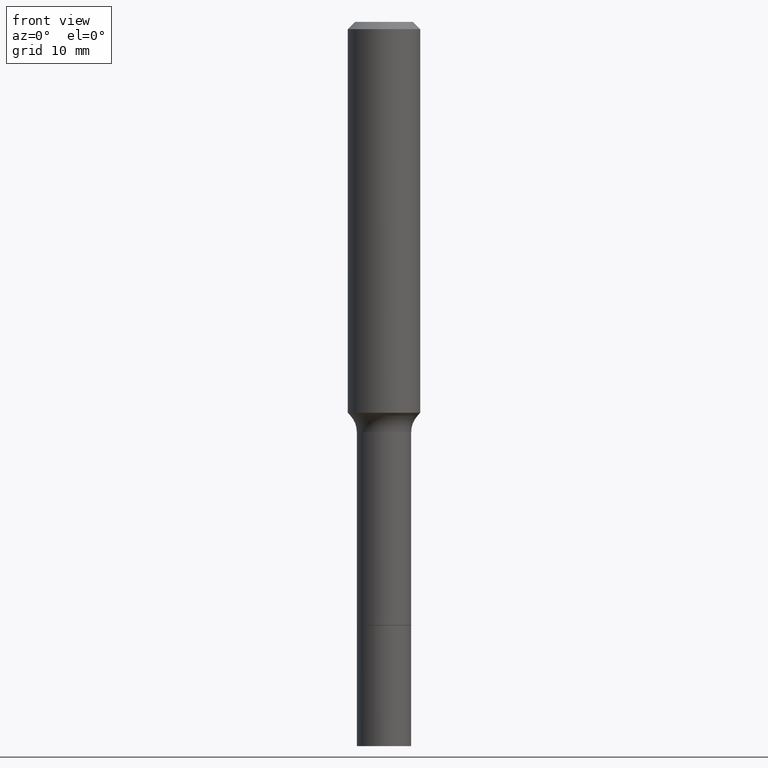
[diagram: clean part render]
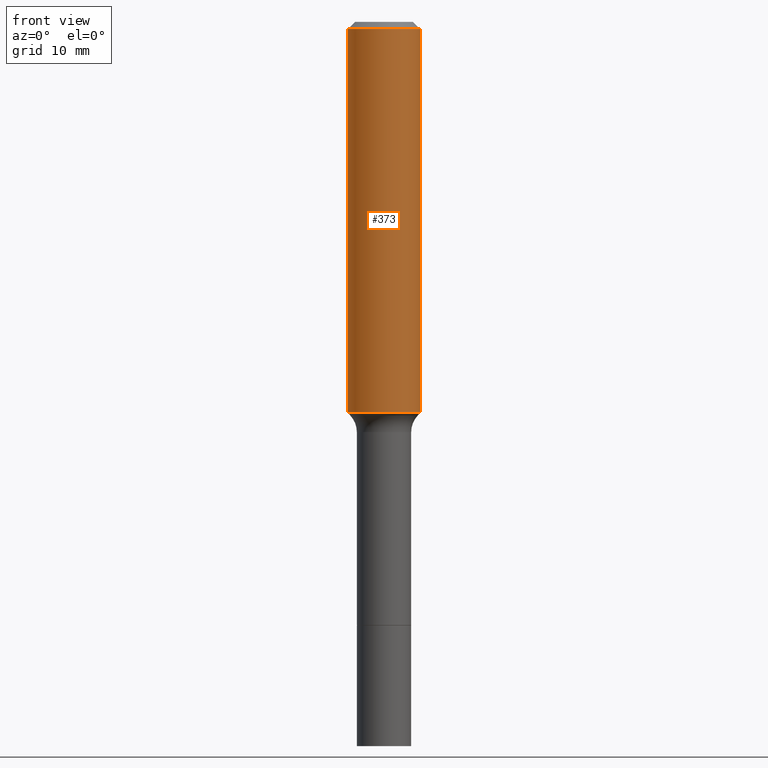
[diagram: same view with one face highlighted and labeled with its STEP entity id]
A machine part, front view. The second image highlights one B-rep face of the part: STEP entity #373.
In plain terms, the highlighted cylindrical surface (edge-blend (fillet) strip) has radius 2.9997 mm, axis along (-0, 0, 1).
Its self-contained STEP definition (entity closure, byte-faithful):
#4 = CARTESIAN_POINT ( 'NONE',  ( 0.1180999999999999966, -9.071566814582237199E-16, -0.02362000000000014435 ) ) ;
#26 = AXIS2_PLACEMENT_3D ( 'NONE', #436, #151, #187 ) ;
#43 = ORIENTED_EDGE ( 'NONE', *, *, #117, .F. ) ;
#52 = EDGE_LOOP ( 'NONE', ( #43, #231, #331, #382 ) ) ;
#79 = EDGE_CURVE ( 'NONE', #281, #127, #395, .T. ) ;
#80 = LINE ( 'NONE', #167, #272 ) ;
#85 = DIRECTION ( 'NONE',  ( 1.000000000000000000, -6.982962677686266711E-15, 4.876176775795936353E-29 ) ) ;
#114 = CARTESIAN_POINT ( 'NONE',  ( -0.1180999999999999966, -1.427994053251326329E-15, -0.02362000000000014435 ) ) ;
#117 = EDGE_CURVE ( 'NONE', #281, #240, #304, .T. ) ;
#118 = FACE_OUTER_BOUND ( 'NONE', #52, .T. ) ;
#127 = VERTEX_POINT ( 'NONE', #154 ) ;
#140 = VERTEX_POINT ( 'NONE', #4 ) ;
#151 = DIRECTION ( 'NONE',  ( -2.445468806185136597E-29, 3.491481338843145583E-15, 1.000000000000000000 ) ) ;
#154 = CARTESIAN_POINT ( 'NONE',  ( 0.1181000000000001493, -5.276509151379284224E-15, -1.275052285005076280 ) ) ;
#167 = CARTESIAN_POINT ( 'NONE',  ( 0.1181000000000000660, -8.246878922347485584E-16, 5.758764772215003944E-30 ) ) ;
#187 = DIRECTION ( 'NONE',  ( 1.000000000000000000, -6.982962677686264344E-15, 0.000000000000000000 ) ) ;
#192 = AXIS2_PLACEMENT_3D ( 'NONE', #443, #399, #85 ) ;
#212 = VECTOR ( 'NONE', #475, 39.37007874015748143 ) ;
#231 = ORIENTED_EDGE ( 'NONE', *, *, #79, .T. ) ;
#240 = VERTEX_POINT ( 'NONE', #114 ) ;
#272 = VECTOR ( 'NONE', #451, 39.37007874015748143 ) ;
#274 = CYLINDRICAL_SURFACE ( 'NONE', #192, 0.1181000000000000660 ) ;
#280 = CARTESIAN_POINT ( 'NONE',  ( -0.1181000000000001493, -3.612670288211856187E-15, -1.275052285005076280 ) ) ;
#281 = VERTEX_POINT ( 'NONE', #280 ) ;
#293 = EDGE_CURVE ( 'NONE', #127, #140, #80, .T. ) ;
#304 = LINE ( 'NONE', #483, #212 ) ;
#326 = AXIS2_PLACEMENT_3D ( 'NONE', #407, #402, #363 ) ;
#331 = ORIENTED_EDGE ( 'NONE', *, *, #293, .T. ) ;
#359 = CIRCLE ( 'NONE', #326, 0.1180999999999999966 ) ;
#363 = DIRECTION ( 'NONE',  ( 1.000000000000000000, -6.982962677686266711E-15, 0.000000000000000000 ) ) ;
#373 = ADVANCED_FACE ( 'NONE', ( #118 ), #274, .T. ) ;
#382 = ORIENTED_EDGE ( 'NONE', *, *, #389, .F. ) ;
#389 = EDGE_CURVE ( 'NONE', #240, #140, #359, .T. ) ;
#395 = CIRCLE ( 'NONE', #26, 0.1181000000000001493 ) ;
#399 = DIRECTION ( 'NONE',  ( -2.445468806185136597E-29, 3.491481338843145583E-15, 1.000000000000000000 ) ) ;
#402 = DIRECTION ( 'NONE',  ( -2.445468806185136597E-29, 3.491481338843145583E-15, 1.000000000000000000 ) ) ;
#407 = CARTESIAN_POINT ( 'NONE',  ( 5.776197320209328408E-31, -8.246878922347560526E-17, -0.02362000000000014435 ) ) ;
#436 = CARTESIAN_POINT ( 'NONE',  ( 3.118100589234994033E-29, -4.451821259144535962E-15, -1.275052285005076280 ) ) ;
#443 = CARTESIAN_POINT ( 'NONE',  ( 0.000000000000000000, 0.000000000000000000, 0.000000000000000000 ) ) ;
#451 = DIRECTION ( 'NONE',  ( -2.445468806185136877E-29, 3.491481338843145188E-15, 1.000000000000000000 ) ) ;
#475 = DIRECTION ( 'NONE',  ( -2.445468806185136877E-29, 3.491481338843145188E-15, 1.000000000000000000 ) ) ;
#483 = CARTESIAN_POINT ( 'NONE',  ( -0.1181000000000000660, 8.391509709326787887E-16, -5.809262341591047287E-30 ) ) ;